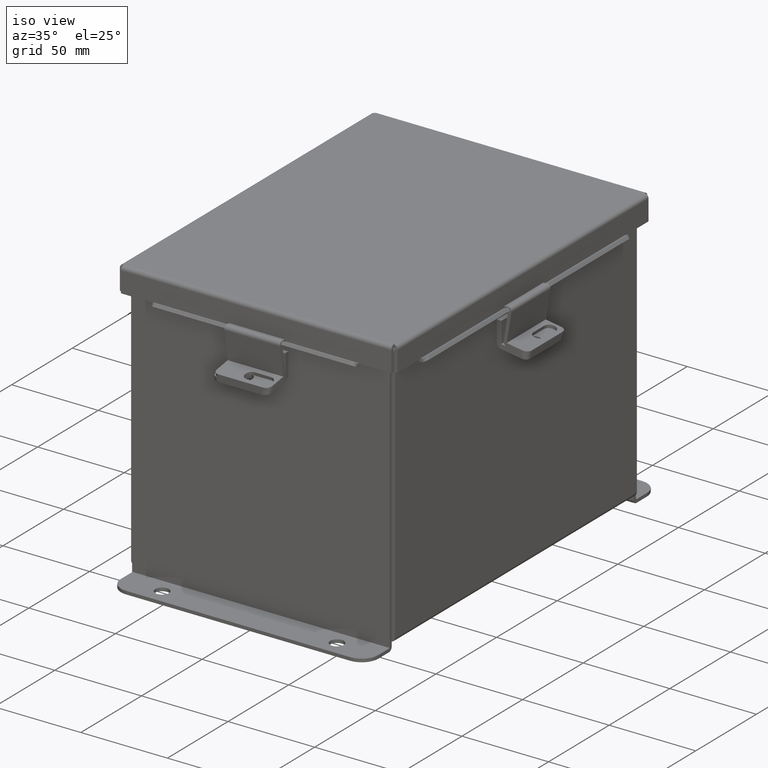
[diagram: clean part render]
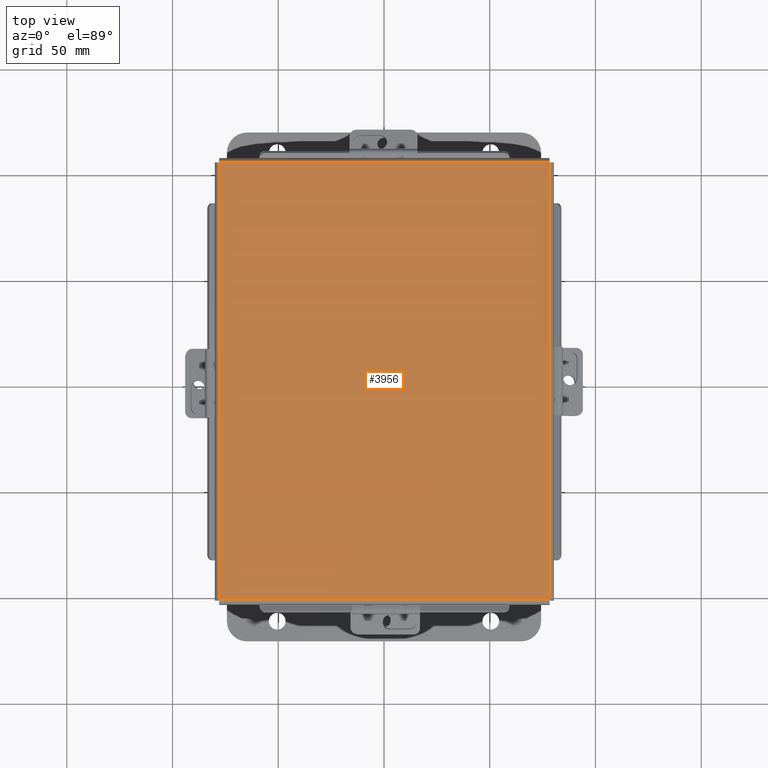
[diagram: tour spotlight — one face highlighted and labeled with its STEP entity id]
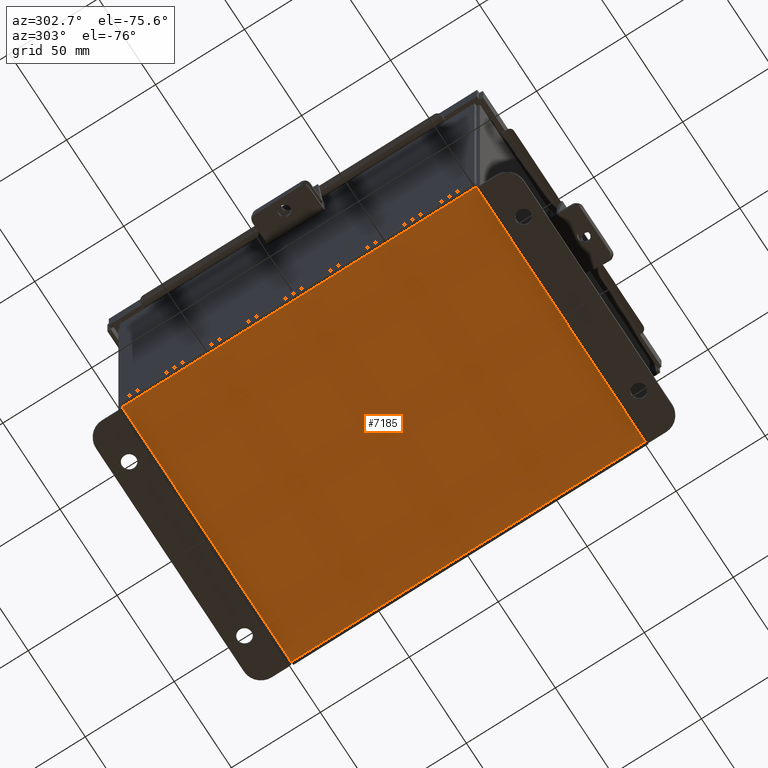
[diagram: tour spotlight — one face highlighted and labeled with its STEP entity id]
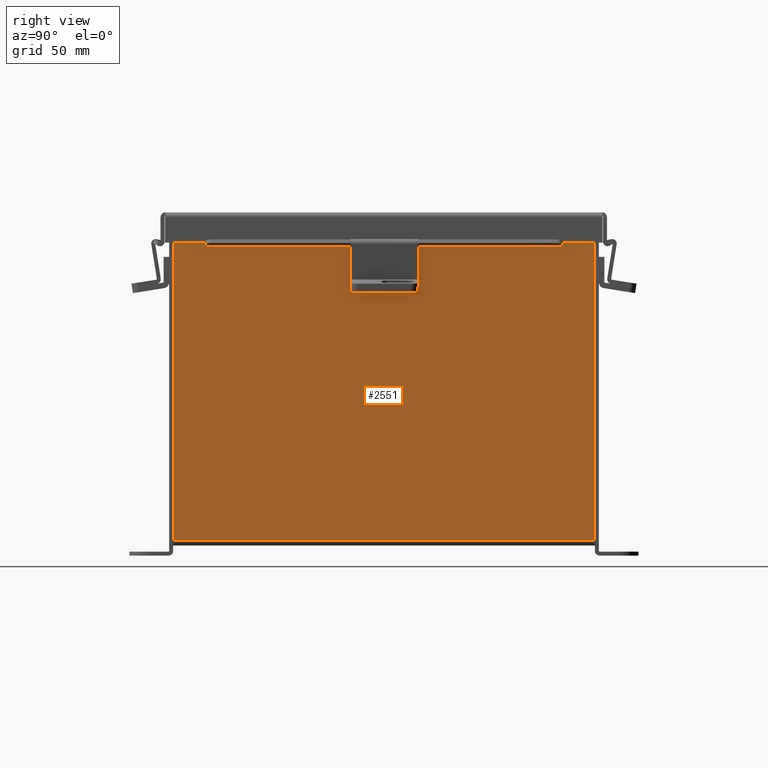
[diagram: tour spotlight — one face highlighted and labeled with its STEP entity id]
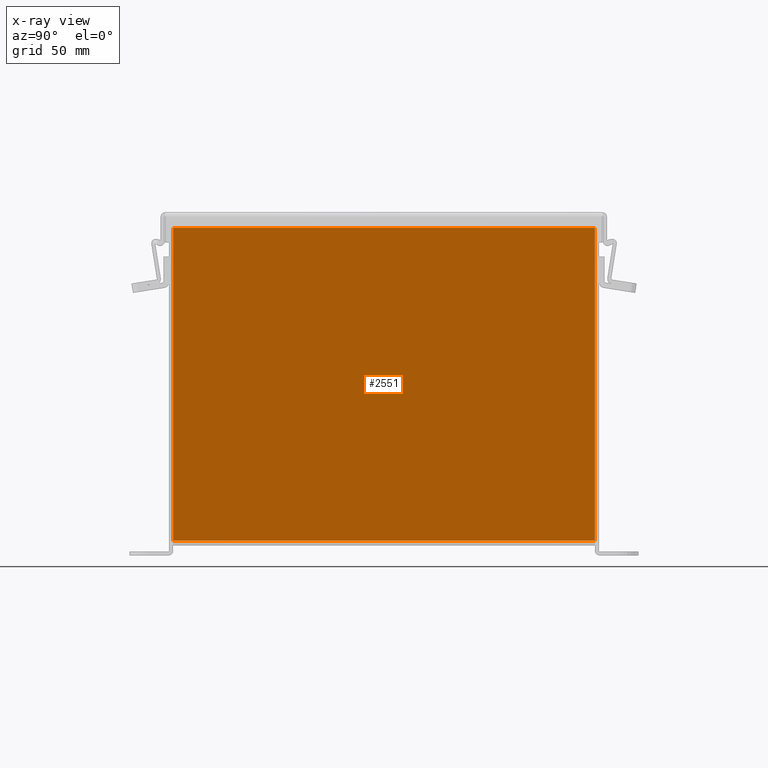
[diagram: x-ray of the same camera — body ghosted, this tour face saturated]
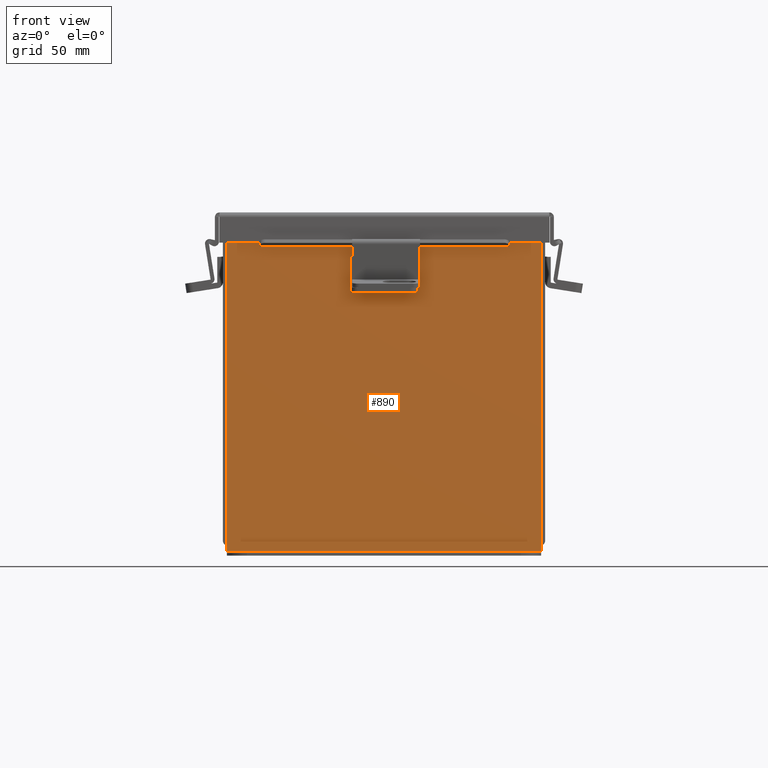
[diagram: tour spotlight — one face highlighted and labeled with its STEP entity id]
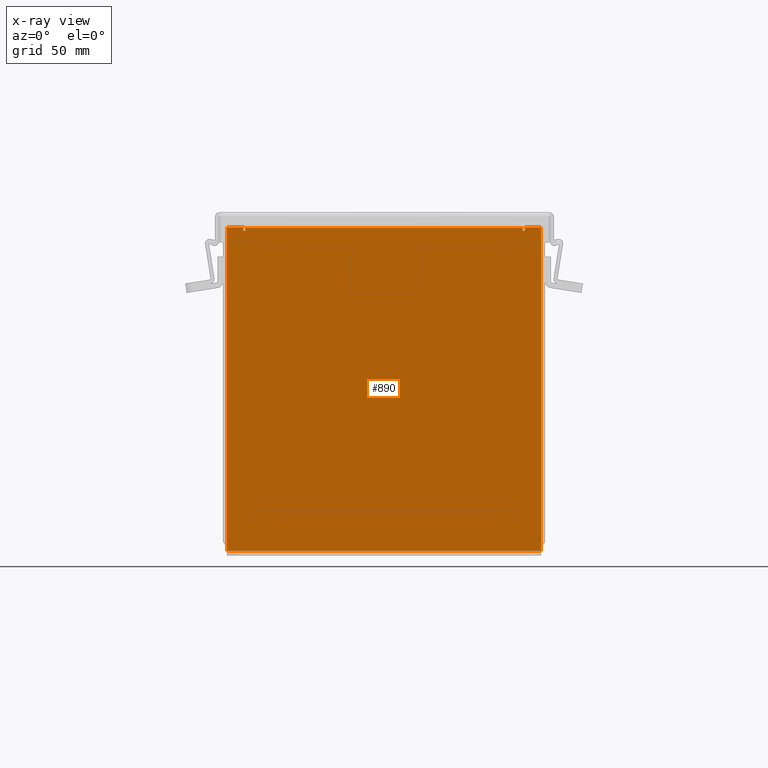
[diagram: x-ray of the same camera — body ghosted, this tour face saturated]
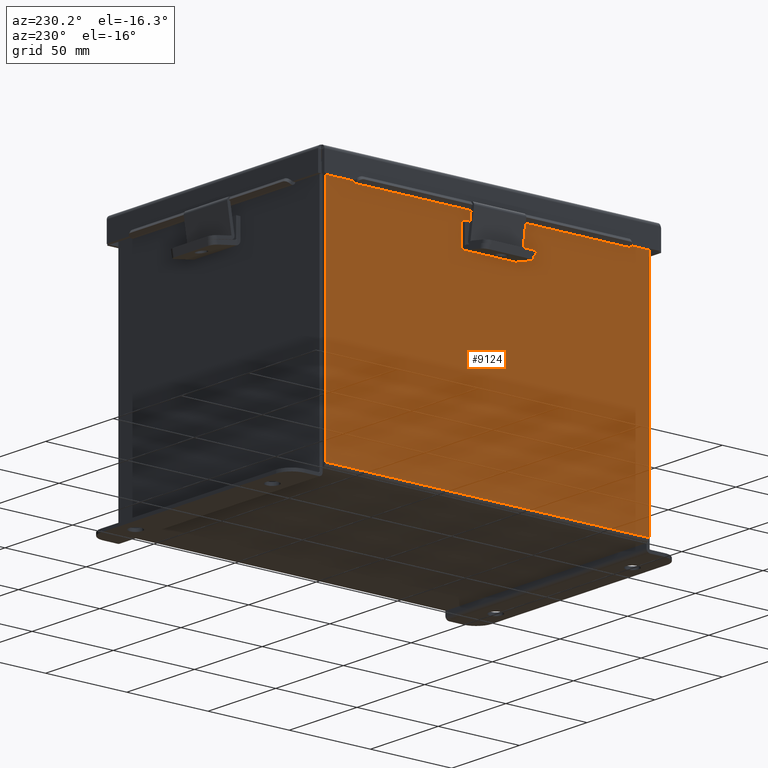
[diagram: tour spotlight — one face highlighted and labeled with its STEP entity id]
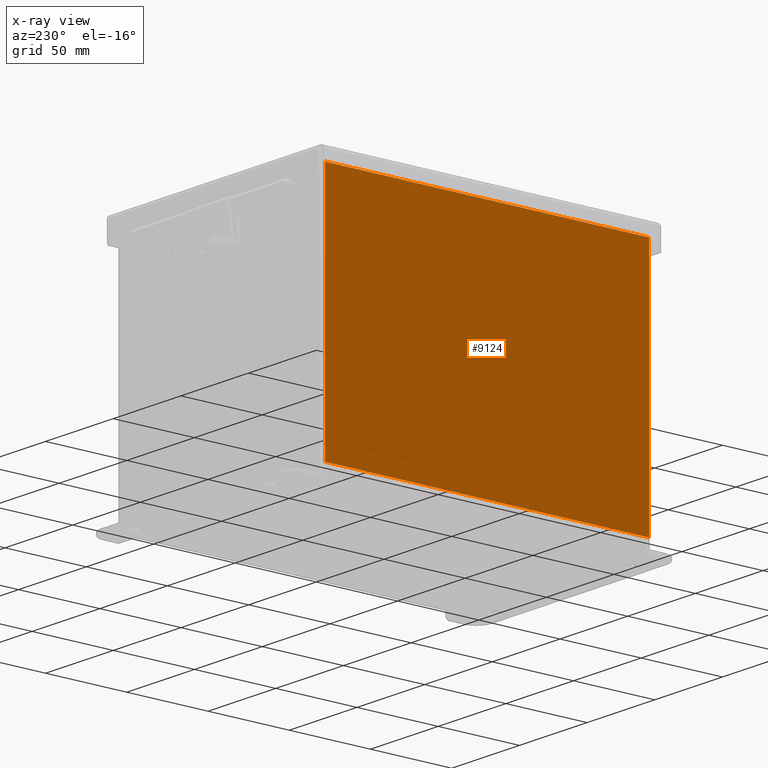
[diagram: x-ray of the same camera — body ghosted, this tour face saturated]
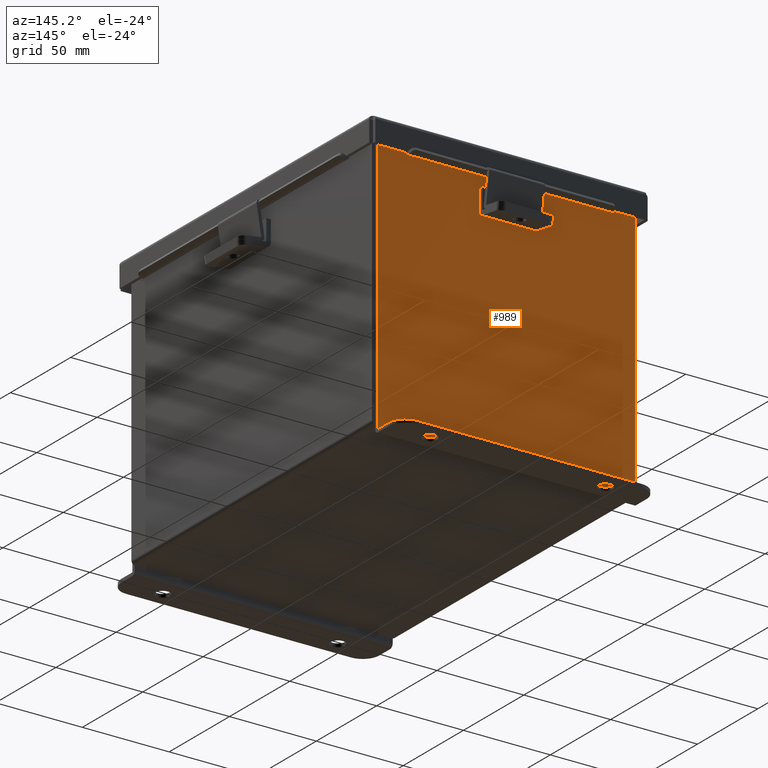
[diagram: tour spotlight — one face highlighted and labeled with its STEP entity id]
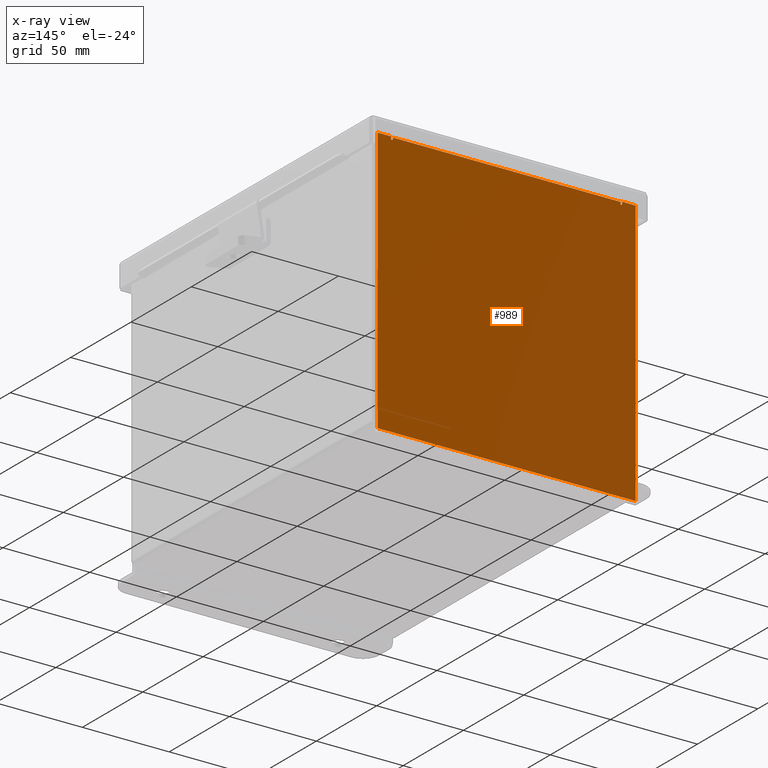
[diagram: x-ray of the same camera — body ghosted, this tour face saturated]
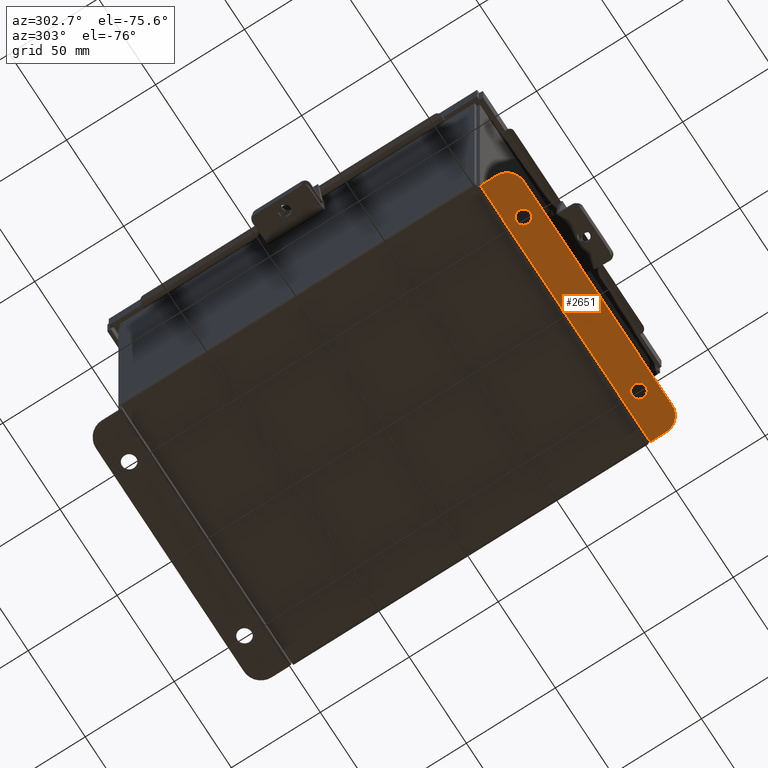
[diagram: tour spotlight — one face highlighted and labeled with its STEP entity id]
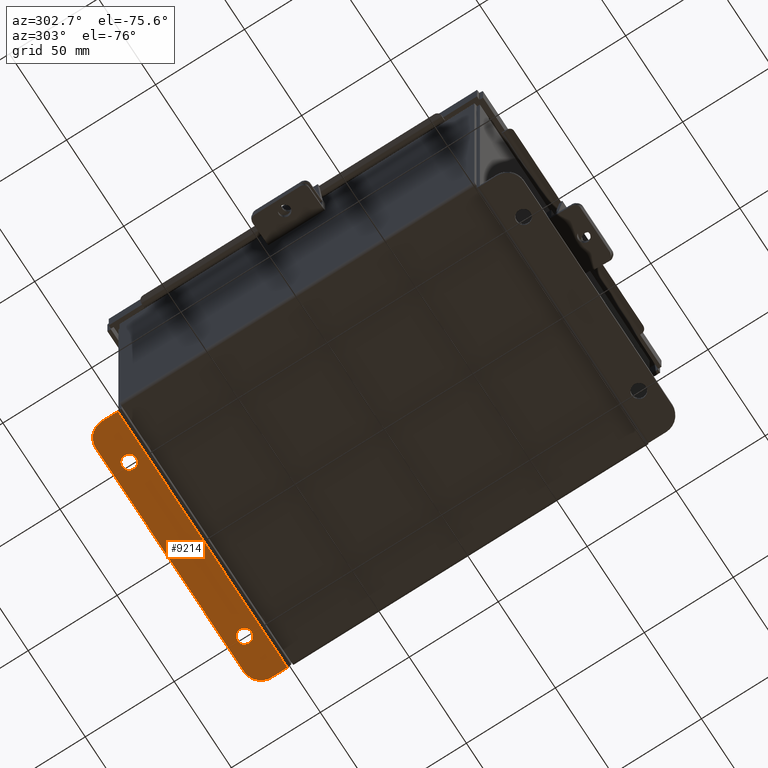
[diagram: tour spotlight — one face highlighted and labeled with its STEP entity id]
A machine part: a face-by-face anatomy tour. The part has 456 B-rep faces; the first image is the clean iso view, then the 8 largest visible faces are spotlighted one at a time (largest first), each with its STEP entity span.

Face 1 — top view, entity #3956. In plain terms, the highlighted planar face has unit normal (-0, -0, 1).
Definition (entity closure, byte-faithful):
#1202 = ORIENTED_EDGE ( 'NONE', *, *, #5972, .T. ) ;
#1941 = LINE ( 'NONE', #7887, #5937 ) ;
#2006 = VERTEX_POINT ( 'NONE', #4740 ) ;
#2049 = EDGE_CURVE ( 'NONE', #3231, #2006, #6507, .T. ) ;
#2051 = DIRECTION ( 'NONE',  ( -1.000000000000000000, 0.0000000000000000000, 0.0000000000000000000 ) ) ;
#2174 = FACE_OUTER_BOUND ( 'NONE', #7906, .T. ) ;
#2582 = LINE ( 'NONE', #7420, #8201 ) ;
#2766 = CARTESIAN_POINT ( 'NONE',  ( 0.0000000000000000000, 0.0000000000000000000, -0.07470000000000000300 ) ) ;
#3138 = VECTOR ( 'NONE', #6860, 39.37007874015748100 ) ;
#3220 = CARTESIAN_POINT ( 'NONE',  ( -3.068549999999998800, -4.068549999999999200, -0.07469999999999994700 ) ) ;
#3231 = VERTEX_POINT ( 'NONE', #5238 ) ;
#3336 = DIRECTION ( 'NONE',  ( 1.000000000000000000, 0.0000000000000000000, 0.0000000000000000000 ) ) ;
#3500 = DIRECTION ( 'NONE',  ( -1.000000000000000000, 0.0000000000000000000, -0.0000000000000000000 ) ) ;
#3956 = ADVANCED_FACE ( 'NONE', ( #2174 ), #5681, .T. ) ;
#4272 = EDGE_CURVE ( 'NONE', #5142, #5716, #1941, .T. ) ;
#4740 = CARTESIAN_POINT ( 'NONE',  ( 3.068550000000001000, 4.068550000000001900, -0.07469999999999994700 ) ) ;
#5066 = VECTOR ( 'NONE', #3336, 39.37007874015748100 ) ;
#5135 = ORIENTED_EDGE ( 'NONE', *, *, #8465, .T. ) ;
#5142 = VERTEX_POINT ( 'NONE', #7544 ) ;
#5238 = CARTESIAN_POINT ( 'NONE',  ( -3.068549999999999200, 4.068550000000001900, -0.07469999999999994700 ) ) ;
#5287 = DIRECTION ( 'NONE',  ( -0.0000000000000000000, 1.000000000000000000, -0.0000000000000000000 ) ) ;
#5325 = LINE ( 'NONE', #5414, #3138 ) ;
#5414 = CARTESIAN_POINT ( 'NONE',  ( 3.068550000000001000, 4.074478932188137400, -0.07469999999999994700 ) ) ;
#5681 = PLANE ( 'NONE',  #8582 ) ;
#5716 = VERTEX_POINT ( 'NONE', #3220 ) ;
#5937 = VECTOR ( 'NONE', #2051, 39.37007874015748100 ) ;
#5972 = EDGE_CURVE ( 'NONE', #2006, #5142, #5325, .T. ) ;
#6507 = LINE ( 'NONE', #7704, #5066 ) ;
#6860 = DIRECTION ( 'NONE',  ( -0.0000000000000000000, -1.000000000000000000, -0.0000000000000000000 ) ) ;
#7420 = CARTESIAN_POINT ( 'NONE',  ( -3.068549999999998800, -4.074478932188133800, -0.07469999999999994700 ) ) ;
#7544 = CARTESIAN_POINT ( 'NONE',  ( 3.068550000000001400, -4.068549999999998300, -0.07469999999999994700 ) ) ;
#7704 = CARTESIAN_POINT ( 'NONE',  ( -3.074478932188133800, 4.068550000000001900, -0.07469999999999994700 ) ) ;
#7878 = DIRECTION ( 'NONE',  ( 0.0000000000000000000, 0.0000000000000000000, -1.000000000000000000 ) ) ;
#7887 = CARTESIAN_POINT ( 'NONE',  ( 3.074478932188136100, -4.068549999999998300, -0.07469999999999994700 ) ) ;
#7906 = EDGE_LOOP ( 'NONE', ( #8233, #1202, #9113, #5135 ) ) ;
#8201 = VECTOR ( 'NONE', #5287, 39.37007874015748100 ) ;
#8233 = ORIENTED_EDGE ( 'NONE', *, *, #2049, .T. ) ;
#8465 = EDGE_CURVE ( 'NONE', #5716, #3231, #2582, .T. ) ;
#8582 = AXIS2_PLACEMENT_3D ( 'NONE', #2766, #7878, #3500 ) ;
#9113 = ORIENTED_EDGE ( 'NONE', *, *, #4272, .T. ) ;

Face 2 — auxiliary view, entity #7185. In plain terms, the highlighted planar face has unit normal (0, 0, -1).
Definition (entity closure, byte-faithful):
#193 = VECTOR ( 'NONE', #4798, 39.37007874015748100 ) ;
#416 = CARTESIAN_POINT ( 'NONE',  ( -2.912299999999999200, -3.925299999999999100, -0.07470000000000054400 ) ) ;
#454 = ORIENTED_EDGE ( 'NONE', *, *, #3536, .F. ) ;
#580 = EDGE_LOOP ( 'NONE', ( #454, #645, #2585, #1555 ) ) ;
#645 = ORIENTED_EDGE ( 'NONE', *, *, #1529, .T. ) ;
#1191 = LINE ( 'NONE', #2101, #8586 ) ;
#1352 = VERTEX_POINT ( 'NONE', #416 ) ;
#1529 = EDGE_CURVE ( 'NONE', #7078, #5805, #7736, .T. ) ;
#1555 = ORIENTED_EDGE ( 'NONE', *, *, #4048, .T. ) ;
#2101 = CARTESIAN_POINT ( 'NONE',  ( -2.999999999999999600, -3.925299999999999100, -0.07470000000000000300 ) ) ;
#2191 = VERTEX_POINT ( 'NONE', #4493 ) ;
#2585 = ORIENTED_EDGE ( 'NONE', *, *, #7659, .F. ) ;
#3216 = VECTOR ( 'NONE', #5884, 39.37007874015748100 ) ;
#3234 = DIRECTION ( 'NONE',  ( -1.000000000000000000, 0.0000000000000000000, -0.0000000000000000000 ) ) ;
#3288 = CARTESIAN_POINT ( 'NONE',  ( -2.999999999999999600, 3.925300000000000500, -0.07470000000000000300 ) ) ;
#3536 = EDGE_CURVE ( 'NONE', #7078, #2191, #8275, .T. ) ;
#4048 = EDGE_CURVE ( 'NONE', #1352, #2191, #9311, .T. ) ;
#4438 = CARTESIAN_POINT ( 'NONE',  ( 2.912300000000000600, 3.925300000000000500, -0.07469999999999935000 ) ) ;
#4493 = CARTESIAN_POINT ( 'NONE',  ( -2.912299999999999200, 3.925300000000000500, -0.07470000000000000300 ) ) ;
#4798 = DIRECTION ( 'NONE',  ( -1.000000000000000000, -0.0000000000000000000, -0.0000000000000000000 ) ) ;
#5805 = VERTEX_POINT ( 'NONE', #9188 ) ;
#5884 = DIRECTION ( 'NONE',  ( -0.0000000000000000000, 1.000000000000000000, 8.208677865577646300E-017 ) ) ;
#5888 = FACE_OUTER_BOUND ( 'NONE', #580, .T. ) ;
#6127 = PLANE ( 'NONE',  #6488 ) ;
#6233 = VECTOR ( 'NONE', #8836, 39.37007874015748100 ) ;
#6488 = AXIS2_PLACEMENT_3D ( 'NONE', #6855, #7609, #3234 ) ;
#6855 = CARTESIAN_POINT ( 'NONE',  ( 0.0000000000000000000, 0.0000000000000000000, -0.07470000000000000300 ) ) ;
#7078 = VERTEX_POINT ( 'NONE', #7512 ) ;
#7185 = ADVANCED_FACE ( 'NONE', ( #5888 ), #6127, .T. ) ;
#7344 = CARTESIAN_POINT ( 'NONE',  ( -2.912299999999999200, -3.925299999999999100, -0.07470000000000054400 ) ) ;
#7512 = CARTESIAN_POINT ( 'NONE',  ( 2.912300000000000600, 3.925300000000000500, -0.07469999999999935000 ) ) ;
#7609 = DIRECTION ( 'NONE',  ( 0.0000000000000000000, 0.0000000000000000000, -1.000000000000000000 ) ) ;
#7659 = EDGE_CURVE ( 'NONE', #1352, #5805, #1191, .T. ) ;
#7736 = LINE ( 'NONE', #4438, #6233 ) ;
#8275 = LINE ( 'NONE', #3288, #193 ) ;
#8586 = VECTOR ( 'NONE', #8723, 39.37007874015748100 ) ;
#8723 = DIRECTION ( 'NONE',  ( 1.000000000000000000, 0.0000000000000000000, 0.0000000000000000000 ) ) ;
#8836 = DIRECTION ( 'NONE',  ( -0.0000000000000000000, -1.000000000000000000, -8.208677865577646300E-017 ) ) ;
#9188 = CARTESIAN_POINT ( 'NONE',  ( 2.912300000000000600, -3.925299999999998700, -0.07469999999999998900 ) ) ;
#9311 = LINE ( 'NONE', #7344, #3216 ) ;

Face 3 — right view, entity #2551. An x-ray twin of the same camera follows (body ghosted, this face saturated) — the face is partly hidden behind the body. In plain terms, the highlighted planar face has unit normal (-1, 0, 0).
Definition (entity closure, byte-faithful):
#132 = VERTEX_POINT ( 'NONE', #7115 ) ;
#542 = PLANE ( 'NONE',  #2210 ) ;
#711 = EDGE_CURVE ( 'NONE', #7418, #965, #7378, .T. ) ;
#800 = DIRECTION ( 'NONE',  ( -0.0000000000000000000, -1.000000000000000000, -0.0000000000000000000 ) ) ;
#965 = VERTEX_POINT ( 'NONE', #8748 ) ;
#1138 = VERTEX_POINT ( 'NONE', #1160 ) ;
#1160 = CARTESIAN_POINT ( 'NONE',  ( 3.000000000000000900, -3.925299999999999100, 0.01299999999999980000 ) ) ;
#1296 = DIRECTION ( 'NONE',  ( -1.000000000000000000, 0.0000000000000000000, 3.455316574900958600E-015 ) ) ;
#1534 = VECTOR ( 'NONE', #5278, 39.37007874015748100 ) ;
#1551 = ORIENTED_EDGE ( 'NONE', *, *, #711, .T. ) ;
#2210 = AXIS2_PLACEMENT_3D ( 'NONE', #5739, #1296, #6428 ) ;
#2319 = CARTESIAN_POINT ( 'NONE',  ( 3.000000000000020900, 3.925299999999999100, 5.837599999999999200 ) ) ;
#2551 = ADVANCED_FACE ( 'NONE', ( #5445 ), #542, .F. ) ;
#3111 = CARTESIAN_POINT ( 'NONE',  ( 3.000000000000000900, -3.925299999999999100, -1.062676338071446000E-014 ) ) ;
#3236 = ORIENTED_EDGE ( 'NONE', *, *, #5311, .T. ) ;
#3496 = LINE ( 'NONE', #3111, #5199 ) ;
#3522 = LINE ( 'NONE', #7442, #1534 ) ;
#3818 = VECTOR ( 'NONE', #5545, 39.37007874015748100 ) ;
#5199 = VECTOR ( 'NONE', #5327, 39.37007874015748100 ) ;
#5278 = DIRECTION ( 'NONE',  ( -2.404758783435167000E-031, -1.000000000000000000, -6.959590333641414100E-017 ) ) ;
#5303 = LINE ( 'NONE', #7720, #3818 ) ;
#5311 = EDGE_CURVE ( 'NONE', #132, #7418, #5303, .T. ) ;
#5327 = DIRECTION ( 'NONE',  ( -3.455316574900958600E-015, 0.0000000000000000000, -1.000000000000000000 ) ) ;
#5445 = FACE_OUTER_BOUND ( 'NONE', #9538, .T. ) ;
#5545 = DIRECTION ( 'NONE',  ( 3.455316574900958600E-015, -1.867738689135653700E-016, 1.000000000000000000 ) ) ;
#5620 = EDGE_CURVE ( 'NONE', #965, #1138, #3496, .T. ) ;
#5739 = CARTESIAN_POINT ( 'NONE',  ( 3.000000000000000900, 0.0000000000000000000, -1.062676338071446000E-014 ) ) ;
#6275 = ORIENTED_EDGE ( 'NONE', *, *, #7875, .F. ) ;
#6339 = CARTESIAN_POINT ( 'NONE',  ( 3.000000000000020900, 3.925299999999999100, 5.837599999999999200 ) ) ;
#6428 = DIRECTION ( 'NONE',  ( 3.455316574900958600E-015, 0.0000000000000000000, 1.000000000000000000 ) ) ;
#7115 = CARTESIAN_POINT ( 'NONE',  ( 3.000000000000000900, 3.925300000000000500, 0.01300000000000039300 ) ) ;
#7169 = VECTOR ( 'NONE', #800, 39.37007874015748100 ) ;
#7229 = ORIENTED_EDGE ( 'NONE', *, *, #5620, .T. ) ;
#7378 = LINE ( 'NONE', #2319, #7169 ) ;
#7418 = VERTEX_POINT ( 'NONE', #6339 ) ;
#7442 = CARTESIAN_POINT ( 'NONE',  ( 3.000000000000000900, -3.925299999999999100, 0.01299999999999984700 ) ) ;
#7720 = CARTESIAN_POINT ( 'NONE',  ( 3.000000000000000900, 3.925300000000000500, -9.893619913068043400E-015 ) ) ;
#7875 = EDGE_CURVE ( 'NONE', #132, #1138, #3522, .T. ) ;
#8748 = CARTESIAN_POINT ( 'NONE',  ( 3.000000000000020900, -3.925299999999999100, 5.837599999999999200 ) ) ;
#9538 = EDGE_LOOP ( 'NONE', ( #1551, #7229, #6275, #3236 ) ) ;

Face 4 — front view, entity #890. An x-ray twin of the same camera follows (body ghosted, this face saturated) — the face is partly hidden behind the body. In plain terms, the highlighted planar face has unit normal (-0, 1, -0).
Definition (entity closure, byte-faithful):
#11 = ORIENTED_EDGE ( 'NONE', *, *, #1591, .T. ) ;
#78 = VECTOR ( 'NONE', #4478, 39.37007874015748100 ) ;
#266 = ORIENTED_EDGE ( 'NONE', *, *, #8059, .T. ) ;
#334 = CARTESIAN_POINT ( 'NONE',  ( -2.925299999999998200, -9.177301853715884100E-017, -3.099300000000000400 ) ) ;
#410 = CARTESIAN_POINT ( 'NONE',  ( 2.582300000000001400, 0.0000000000000000000, 0.0000000000000000000 ) ) ;
#567 = CARTESIAN_POINT ( 'NONE',  ( -2.925299999999998200, 0.0000000000000000000, 2.925299999999999600 ) ) ;
#660 = ORIENTED_EDGE ( 'NONE', *, *, #1533, .T. ) ;
#664 = DIRECTION ( 'NONE',  ( 0.0000000000000000000, 0.0000000000000000000, -1.000000000000000000 ) ) ;
#679 = CIRCLE ( 'NONE', #1717, 0.01867500000000003900 ) ;
#721 = ORIENTED_EDGE ( 'NONE', *, *, #2385, .F. ) ;
#722 = CARTESIAN_POINT ( 'NONE',  ( 0.0000000000000000000, 0.0000000000000000000, 0.0000000000000000000 ) ) ;
#890 = ADVANCED_FACE ( 'NONE', ( #4783 ), #9587, .F. ) ;
#923 = CARTESIAN_POINT ( 'NONE',  ( 2.600975000000001800, 0.0000000000000000000, 2.874949999999998800 ) ) ;
#1182 = VECTOR ( 'NONE', #7439, 39.37007874015748100 ) ;
#1289 = VERTEX_POINT ( 'NONE', #567 ) ;
#1346 = LINE ( 'NONE', #410, #2295 ) ;
#1472 = DIRECTION ( 'NONE',  ( 0.0000000000000000000, -0.0000000000000000000, -1.000000000000000000 ) ) ;
#1533 = EDGE_CURVE ( 'NONE', #4125, #6742, #2936, .T. ) ;
#1559 = CARTESIAN_POINT ( 'NONE',  ( 2.925300000000001800, 0.0000000000000000000, 2.925299999999999600 ) ) ;
#1570 = VECTOR ( 'NONE', #4822, 39.37007874015748100 ) ;
#1591 = EDGE_CURVE ( 'NONE', #6742, #4579, #5356, .T. ) ;
#1674 = DIRECTION ( 'NONE',  ( 0.0000000000000000000, 0.0000000000000000000, -1.000000000000000000 ) ) ;
#1687 = ORIENTED_EDGE ( 'NONE', *, *, #2871, .F. ) ;
#1717 = AXIS2_PLACEMENT_3D ( 'NONE', #8426, #4023, #9169 ) ;
#1790 = VERTEX_POINT ( 'NONE', #9047 ) ;
#1999 = VERTEX_POINT ( 'NONE', #6891 ) ;
#2030 = ORIENTED_EDGE ( 'NONE', *, *, #3606, .F. ) ;
#2295 = VECTOR ( 'NONE', #4860, 39.37007874015748100 ) ;
#2345 = DIRECTION ( 'NONE',  ( -1.085143195099989400E-014, 0.0000000000000000000, -1.000000000000000000 ) ) ;
#2385 = EDGE_CURVE ( 'NONE', #6716, #2724, #679, .T. ) ;
#2570 = AXIS2_PLACEMENT_3D ( 'NONE', #722, #5891, #1472 ) ;
#2724 = VERTEX_POINT ( 'NONE', #2962 ) ;
#2758 = CARTESIAN_POINT ( 'NONE',  ( 2.925300000000001800, 0.0000000000000000000, 2.925299999999999600 ) ) ;
#2828 = DIRECTION ( 'NONE',  ( 0.0000000000000000000, 0.0000000000000000000, 1.000000000000000000 ) ) ;
#2855 = CARTESIAN_POINT ( 'NONE',  ( -2.619649999999998300, 0.0000000000000000000, 2.925299999999999600 ) ) ;
#2871 = EDGE_CURVE ( 'NONE', #4125, #8734, #8730, .T. ) ;
#2877 = ORIENTED_EDGE ( 'NONE', *, *, #4764, .T. ) ;
#2936 = LINE ( 'NONE', #9600, #7050 ) ;
#2962 = CARTESIAN_POINT ( 'NONE',  ( -2.619649999999998300, 0.0000000000000000000, 2.874949999999998800 ) ) ;
#3092 = CARTESIAN_POINT ( 'NONE',  ( 2.619649999999970700, -0.0000000000000000000, -2.842695371043654900E-014 ) ) ;
#3494 = CARTESIAN_POINT ( 'NONE',  ( -2.582299999999998300, -0.0000000000000000000, 2.874949999999998800 ) ) ;
#3606 = EDGE_CURVE ( 'NONE', #6393, #1999, #1346, .T. ) ;
#3631 = CARTESIAN_POINT ( 'NONE',  ( 2.925300000000001800, -9.177301853715884100E-017, -3.099300000000000400 ) ) ;
#3787 = EDGE_CURVE ( 'NONE', #1790, #4579, #8976, .T. ) ;
#4023 = DIRECTION ( 'NONE',  ( -0.0000000000000000000, 1.000000000000000000, -0.0000000000000000000 ) ) ;
#4125 = VERTEX_POINT ( 'NONE', #4797 ) ;
#4293 = EDGE_CURVE ( 'NONE', #2724, #8340, #8525, .T. ) ;
#4331 = ORIENTED_EDGE ( 'NONE', *, *, #5869, .F. ) ;
#4478 = DIRECTION ( 'NONE',  ( 1.000000000000000000, 0.0000000000000000000, 0.0000000000000000000 ) ) ;
#4530 = ORIENTED_EDGE ( 'NONE', *, *, #3787, .F. ) ;
#4579 = VERTEX_POINT ( 'NONE', #3631 ) ;
#4733 = DIRECTION ( 'NONE',  ( 1.000000000000000000, 0.0000000000000000000, 0.0000000000000000000 ) ) ;
#4764 = EDGE_CURVE ( 'NONE', #1289, #8340, #4826, .T. ) ;
#4783 = FACE_OUTER_BOUND ( 'NONE', #6937, .T. ) ;
#4797 = CARTESIAN_POINT ( 'NONE',  ( 2.619650000000001800, 0.0000000000000000000, 2.925299999999999600 ) ) ;
#4822 = DIRECTION ( 'NONE',  ( 1.000000000000000000, -0.0000000000000000000, -0.0000000000000000000 ) ) ;
#4826 = LINE ( 'NONE', #7416, #78 ) ;
#4860 = DIRECTION ( 'NONE',  ( 0.0000000000000000000, 0.0000000000000000000, 1.000000000000000000 ) ) ;
#4999 = DIRECTION ( 'NONE',  ( -0.0000000000000000000, -0.0000000000000000000, 1.000000000000000000 ) ) ;
#5049 = VECTOR ( 'NONE', #2345, 39.37007874015748100 ) ;
#5110 = CARTESIAN_POINT ( 'NONE',  ( -2.582299999999998300, -0.0000000000000000000, 0.0000000000000000000 ) ) ;
#5356 = LINE ( 'NONE', #1559, #1182 ) ;
#5568 = AXIS2_PLACEMENT_3D ( 'NONE', #923, #6077, #1674 ) ;
#5579 = VECTOR ( 'NONE', #4733, 39.37007874015748100 ) ;
#5649 = VERTEX_POINT ( 'NONE', #9037 ) ;
#5869 = EDGE_CURVE ( 'NONE', #8734, #6393, #7247, .T. ) ;
#5891 = DIRECTION ( 'NONE',  ( 0.0000000000000000000, -1.000000000000000000, 0.0000000000000000000 ) ) ;
#6077 = DIRECTION ( 'NONE',  ( -0.0000000000000000000, 1.000000000000000000, -0.0000000000000000000 ) ) ;
#6343 = EDGE_CURVE ( 'NONE', #5649, #6716, #8746, .T. ) ;
#6393 = VERTEX_POINT ( 'NONE', #8040 ) ;
#6599 = DIRECTION ( 'NONE',  ( 1.000000000000000000, 0.0000000000000000000, 0.0000000000000000000 ) ) ;
#6716 = VERTEX_POINT ( 'NONE', #3494 ) ;
#6742 = VERTEX_POINT ( 'NONE', #2758 ) ;
#6891 = CARTESIAN_POINT ( 'NONE',  ( 2.582300000000001400, 0.0000000000000000000, 2.912299999999998800 ) ) ;
#6937 = EDGE_LOOP ( 'NONE', ( #8680, #721, #7122, #266, #2030, #4331, #1687, #660, #11, #4530, #7979, #2877 ) ) ;
#7050 = VECTOR ( 'NONE', #6599, 39.37007874015748100 ) ;
#7061 = LINE ( 'NONE', #8629, #8803 ) ;
#7122 = ORIENTED_EDGE ( 'NONE', *, *, #6343, .F. ) ;
#7247 = CIRCLE ( 'NONE', #5568, 0.01867500000000003900 ) ;
#7416 = CARTESIAN_POINT ( 'NONE',  ( -2.925299999999998200, 0.0000000000000000000, 2.925299999999999600 ) ) ;
#7439 = DIRECTION ( 'NONE',  ( 0.0000000000000000000, 0.0000000000000000000, -1.000000000000000000 ) ) ;
#7636 = EDGE_CURVE ( 'NONE', #1790, #1289, #7061, .T. ) ;
#7915 = CARTESIAN_POINT ( 'NONE',  ( -2.619649999999998300, -0.0000000000000000000, 0.0000000000000000000 ) ) ;
#7979 = ORIENTED_EDGE ( 'NONE', *, *, #7636, .T. ) ;
#8040 = CARTESIAN_POINT ( 'NONE',  ( 2.582300000000001400, 0.0000000000000000000, 2.874949999999998800 ) ) ;
#8059 = EDGE_CURVE ( 'NONE', #5649, #1999, #9511, .T. ) ;
#8340 = VERTEX_POINT ( 'NONE', #2855 ) ;
#8404 = VECTOR ( 'NONE', #2828, 39.37007874015748100 ) ;
#8426 = CARTESIAN_POINT ( 'NONE',  ( -2.600974999999998300, 0.0000000000000000000, 2.874949999999998800 ) ) ;
#8525 = LINE ( 'NONE', #7915, #8404 ) ;
#8629 = CARTESIAN_POINT ( 'NONE',  ( -2.925299999999998200, 0.0000000000000000000, 2.925299999999999600 ) ) ;
#8680 = ORIENTED_EDGE ( 'NONE', *, *, #4293, .F. ) ;
#8730 = LINE ( 'NONE', #3092, #5049 ) ;
#8734 = VERTEX_POINT ( 'NONE', #9209 ) ;
#8746 = LINE ( 'NONE', #5110, #9219 ) ;
#8803 = VECTOR ( 'NONE', #4999, 39.37007874015748100 ) ;
#8976 = LINE ( 'NONE', #334, #1570 ) ;
#9037 = CARTESIAN_POINT ( 'NONE',  ( -2.582299999999998300, 1.195183497228115100E-015, 2.912299999999998800 ) ) ;
#9047 = CARTESIAN_POINT ( 'NONE',  ( -2.925299999999997800, -9.177301853715884100E-017, -3.099300000000000400 ) ) ;
#9142 = CARTESIAN_POINT ( 'NONE',  ( -2.582299999999998300, 1.195183497228115100E-015, 2.912299999999998800 ) ) ;
#9169 = DIRECTION ( 'NONE',  ( 0.0000000000000000000, 0.0000000000000000000, -1.000000000000000000 ) ) ;
#9209 = CARTESIAN_POINT ( 'NONE',  ( 2.619650000000001800, 0.0000000000000000000, 2.874949999999998800 ) ) ;
#9219 = VECTOR ( 'NONE', #664, 39.37007874015748100 ) ;
#9511 = LINE ( 'NONE', #9142, #5579 ) ;
#9587 = PLANE ( 'NONE',  #2570 ) ;
#9600 = CARTESIAN_POINT ( 'NONE',  ( -2.925299999999998200, 0.0000000000000000000, 2.925299999999999600 ) ) ;

Face 5 — auxiliary view, entity #9124. An x-ray twin of the same camera follows (body ghosted, this face saturated) — the face is partly hidden behind the body. In plain terms, the highlighted planar face has unit normal (1, 0, 0).
Definition (entity closure, byte-faithful):
#2 = ORIENTED_EDGE ( 'NONE', *, *, #8701, .T. ) ;
#301 = CARTESIAN_POINT ( 'NONE',  ( -2.999999999999999600, -3.925299999999999100, 0.01299999999999930000 ) ) ;
#325 = DIRECTION ( 'NONE',  ( 0.0000000000000000000, 1.000000000000000000, 0.0000000000000000000 ) ) ;
#797 = LINE ( 'NONE', #4475, #6327 ) ;
#879 = LINE ( 'NONE', #9012, #8499 ) ;
#1377 = LINE ( 'NONE', #7904, #1380 ) ;
#1380 = VECTOR ( 'NONE', #4243, 39.37007874015748100 ) ;
#2259 = VERTEX_POINT ( 'NONE', #3796 ) ;
#3354 = EDGE_CURVE ( 'NONE', #2259, #5809, #879, .T. ) ;
#3545 = ORIENTED_EDGE ( 'NONE', *, *, #6760, .T. ) ;
#3796 = CARTESIAN_POINT ( 'NONE',  ( -3.000000000000020000, 3.925300000000000500, 5.837600000000000100 ) ) ;
#3933 = DIRECTION ( 'NONE',  ( 1.000000000000000000, 0.0000000000000000000, 3.455316574900958600E-015 ) ) ;
#4243 = DIRECTION ( 'NONE',  ( -3.455316574900958600E-015, 1.867738689135653700E-016, 1.000000000000000000 ) ) ;
#4475 = CARTESIAN_POINT ( 'NONE',  ( -2.999999999999999600, 3.925300000000000500, 0.01299999999999984700 ) ) ;
#4479 = ORIENTED_EDGE ( 'NONE', *, *, #3354, .T. ) ;
#4772 = CARTESIAN_POINT ( 'NONE',  ( -3.000000000000018700, -3.925299999999998200, 5.837600000000000100 ) ) ;
#4781 = CARTESIAN_POINT ( 'NONE',  ( -2.999999999999999600, 3.925300000000000500, 0.01299999999999990100 ) ) ;
#5231 = LINE ( 'NONE', #4772, #5474 ) ;
#5474 = VECTOR ( 'NONE', #325, 39.37007874015748100 ) ;
#5597 = CARTESIAN_POINT ( 'NONE',  ( -3.000000000000018700, -3.925299999999998200, 5.837600000000000100 ) ) ;
#5803 = EDGE_LOOP ( 'NONE', ( #2, #4479, #7295, #3545 ) ) ;
#5809 = VERTEX_POINT ( 'NONE', #4781 ) ;
#6137 = FACE_OUTER_BOUND ( 'NONE', #5803, .T. ) ;
#6327 = VECTOR ( 'NONE', #8870, 39.37007874015748100 ) ;
#6760 = EDGE_CURVE ( 'NONE', #9218, #8219, #1377, .T. ) ;
#6969 = EDGE_CURVE ( 'NONE', #9218, #5809, #797, .T. ) ;
#7214 = AXIS2_PLACEMENT_3D ( 'NONE', #8310, #3933, #9077 ) ;
#7295 = ORIENTED_EDGE ( 'NONE', *, *, #6969, .F. ) ;
#7571 = PLANE ( 'NONE',  #7214 ) ;
#7904 = CARTESIAN_POINT ( 'NONE',  ( -2.999999999999999600, -3.925299999999999100, -9.893619913068038700E-015 ) ) ;
#8219 = VERTEX_POINT ( 'NONE', #5597 ) ;
#8310 = CARTESIAN_POINT ( 'NONE',  ( -2.999999999999999600, 0.0000000000000000000, -1.062676338071445600E-014 ) ) ;
#8319 = DIRECTION ( 'NONE',  ( 3.455316574900958600E-015, 0.0000000000000000000, -1.000000000000000000 ) ) ;
#8499 = VECTOR ( 'NONE', #8319, 39.37007874015748100 ) ;
#8701 = EDGE_CURVE ( 'NONE', #8219, #2259, #5231, .T. ) ;
#8870 = DIRECTION ( 'NONE',  ( -2.404758783435166500E-031, 1.000000000000000000, 6.959590333641412800E-017 ) ) ;
#9012 = CARTESIAN_POINT ( 'NONE',  ( -2.999999999999999600, 3.925300000000000500, -1.062676338071445600E-014 ) ) ;
#9077 = DIRECTION ( 'NONE',  ( 3.455316574900958600E-015, 0.0000000000000000000, -1.000000000000000000 ) ) ;
#9124 = ADVANCED_FACE ( 'NONE', ( #6137 ), #7571, .F. ) ;
#9218 = VERTEX_POINT ( 'NONE', #301 ) ;

Face 6 — auxiliary view, entity #989. An x-ray twin of the same camera follows (body ghosted, this face saturated) — the face is partly hidden behind the body. In plain terms, the highlighted planar face has unit normal (0, -1, 0).
Definition (entity closure, byte-faithful):
#161 = CARTESIAN_POINT ( 'NONE',  ( 2.582300000000000500, 0.0000000000000000000, 0.0000000000000000000 ) ) ;
#233 = AXIS2_PLACEMENT_3D ( 'NONE', #532, #5731, #1278 ) ;
#343 = CARTESIAN_POINT ( 'NONE',  ( -2.600974999999999600, 0.0000000000000000000, 2.874949999999999200 ) ) ;
#412 = EDGE_CURVE ( 'NONE', #8690, #1751, #3626, .T. ) ;
#434 = CARTESIAN_POINT ( 'NONE',  ( -2.925299999999999600, 0.0000000000000000000, 2.925300000000000000 ) ) ;
#439 = DIRECTION ( 'NONE',  ( 1.000000000000000000, -0.0000000000000000000, -0.0000000000000000000 ) ) ;
#532 = CARTESIAN_POINT ( 'NONE',  ( 2.600975000000000500, 0.0000000000000000000, 2.874949999999999200 ) ) ;
#726 = CARTESIAN_POINT ( 'NONE',  ( -2.582299999999999600, -0.0000000000000000000, 2.874949999999999200 ) ) ;
#916 = CARTESIAN_POINT ( 'NONE',  ( 2.619649999999969400, -0.0000000000000000000, -2.842695371043653600E-014 ) ) ;
#989 = ADVANCED_FACE ( 'NONE', ( #8070 ), #8017, .F. ) ;
#1004 = VECTOR ( 'NONE', #3369, 39.37007874015748100 ) ;
#1050 = AXIS2_PLACEMENT_3D ( 'NONE', #5826, #8775, #4370 ) ;
#1096 = DIRECTION ( 'NONE',  ( 0.0000000000000000000, 0.0000000000000000000, -1.000000000000000000 ) ) ;
#1230 = EDGE_CURVE ( 'NONE', #4975, #2134, #6396, .T. ) ;
#1278 = DIRECTION ( 'NONE',  ( 0.0000000000000000000, 0.0000000000000000000, -1.000000000000000000 ) ) ;
#1302 = EDGE_CURVE ( 'NONE', #1751, #7258, #3228, .T. ) ;
#1554 = VERTEX_POINT ( 'NONE', #2278 ) ;
#1751 = VERTEX_POINT ( 'NONE', #3832 ) ;
#1753 = CARTESIAN_POINT ( 'NONE',  ( -2.925299999999999600, 0.0000000000000000000, 2.925300000000000000 ) ) ;
#1794 = CARTESIAN_POINT ( 'NONE',  ( -2.582299999999999600, 1.195183497228115100E-015, 2.912299999999999200 ) ) ;
#1873 = EDGE_CURVE ( 'NONE', #4960, #1554, #2952, .T. ) ;
#1896 = DIRECTION ( 'NONE',  ( 1.000000000000000000, 0.0000000000000000000, 0.0000000000000000000 ) ) ;
#2106 = LINE ( 'NONE', #2739, #6337 ) ;
#2134 = VERTEX_POINT ( 'NONE', #726 ) ;
#2278 = CARTESIAN_POINT ( 'NONE',  ( -2.925299999999999600, 0.0000000000000000000, 2.925300000000000000 ) ) ;
#2332 = VECTOR ( 'NONE', #439, 39.37007874015748100 ) ;
#2333 = LINE ( 'NONE', #916, #2912 ) ;
#2496 = EDGE_CURVE ( 'NONE', #4960, #7258, #6539, .T. ) ;
#2530 = CIRCLE ( 'NONE', #9029, 0.01867500000000003900 ) ;
#2540 = EDGE_CURVE ( 'NONE', #8977, #2710, #2106, .T. ) ;
#2710 = VERTEX_POINT ( 'NONE', #3698 ) ;
#2739 = CARTESIAN_POINT ( 'NONE',  ( -2.619649999999999600, -0.0000000000000000000, 0.0000000000000000000 ) ) ;
#2767 = CARTESIAN_POINT ( 'NONE',  ( 2.582300000000000500, 0.0000000000000000000, 2.874949999999999200 ) ) ;
#2777 = DIRECTION ( 'NONE',  ( 0.0000000000000000000, 0.0000000000000000000, -1.000000000000000000 ) ) ;
#2799 = LINE ( 'NONE', #161, #6776 ) ;
#2841 = LINE ( 'NONE', #8502, #3533 ) ;
#2854 = ORIENTED_EDGE ( 'NONE', *, *, #5064, .T. ) ;
#2863 = ORIENTED_EDGE ( 'NONE', *, *, #4114, .F. ) ;
#2912 = VECTOR ( 'NONE', #9021, 39.37007874015748100 ) ;
#2952 = LINE ( 'NONE', #1753, #8598 ) ;
#3199 = ORIENTED_EDGE ( 'NONE', *, *, #7112, .F. ) ;
#3228 = LINE ( 'NONE', #5024, #1004 ) ;
#3369 = DIRECTION ( 'NONE',  ( 0.0000000000000000000, 0.0000000000000000000, -1.000000000000000000 ) ) ;
#3442 = CIRCLE ( 'NONE', #233, 0.01867500000000003900 ) ;
#3533 = VECTOR ( 'NONE', #1896, 39.37007874015748100 ) ;
#3626 = LINE ( 'NONE', #4643, #3730 ) ;
#3674 = VECTOR ( 'NONE', #2777, 39.37007874015748100 ) ;
#3698 = CARTESIAN_POINT ( 'NONE',  ( -2.619649999999999600, 0.0000000000000000000, 2.925300000000000000 ) ) ;
#3730 = VECTOR ( 'NONE', #4763, 39.37007874015748100 ) ;
#3832 = CARTESIAN_POINT ( 'NONE',  ( 2.925300000000000500, 0.0000000000000000000, 2.925300000000000000 ) ) ;
#4114 = EDGE_CURVE ( 'NONE', #2134, #8977, #2530, .T. ) ;
#4370 = DIRECTION ( 'NONE',  ( 0.0000000000000000000, -0.0000000000000000000, -1.000000000000000000 ) ) ;
#4446 = EDGE_CURVE ( 'NONE', #6954, #9437, #3442, .T. ) ;
#4534 = CARTESIAN_POINT ( 'NONE',  ( 2.582300000000000500, 0.0000000000000000000, 2.912299999999999200 ) ) ;
#4643 = CARTESIAN_POINT ( 'NONE',  ( -2.925299999999999600, 0.0000000000000000000, 2.925300000000000000 ) ) ;
#4763 = DIRECTION ( 'NONE',  ( 1.000000000000000000, 0.0000000000000000000, 0.0000000000000000000 ) ) ;
#4780 = VECTOR ( 'NONE', #4881, 39.37007874015748100 ) ;
#4851 = EDGE_CURVE ( 'NONE', #9437, #7874, #2799, .T. ) ;
#4881 = DIRECTION ( 'NONE',  ( 1.000000000000000000, 0.0000000000000000000, 0.0000000000000000000 ) ) ;
#4960 = VERTEX_POINT ( 'NONE', #9143 ) ;
#4975 = VERTEX_POINT ( 'NONE', #1794 ) ;
#5024 = CARTESIAN_POINT ( 'NONE',  ( 2.925300000000000500, 0.0000000000000000000, 2.925300000000000000 ) ) ;
#5064 = EDGE_CURVE ( 'NONE', #4975, #7874, #2841, .T. ) ;
#5379 = ORIENTED_EDGE ( 'NONE', *, *, #4851, .F. ) ;
#5490 = ORIENTED_EDGE ( 'NONE', *, *, #9333, .T. ) ;
#5522 = DIRECTION ( 'NONE',  ( -0.0000000000000000000, 1.000000000000000000, -0.0000000000000000000 ) ) ;
#5731 = DIRECTION ( 'NONE',  ( -0.0000000000000000000, 1.000000000000000000, -0.0000000000000000000 ) ) ;
#5796 = ORIENTED_EDGE ( 'NONE', *, *, #412, .T. ) ;
#5826 = CARTESIAN_POINT ( 'NONE',  ( 0.0000000000000000000, 0.0000000000000000000, 0.0000000000000000000 ) ) ;
#6337 = VECTOR ( 'NONE', #7109, 39.37007874015748100 ) ;
#6396 = LINE ( 'NONE', #8621, #3674 ) ;
#6539 = LINE ( 'NONE', #7789, #2332 ) ;
#6776 = VECTOR ( 'NONE', #9061, 39.37007874015748100 ) ;
#6880 = DIRECTION ( 'NONE',  ( -0.0000000000000000000, -0.0000000000000000000, 1.000000000000000000 ) ) ;
#6892 = ORIENTED_EDGE ( 'NONE', *, *, #2496, .F. ) ;
#6954 = VERTEX_POINT ( 'NONE', #9605 ) ;
#7109 = DIRECTION ( 'NONE',  ( 0.0000000000000000000, 0.0000000000000000000, 1.000000000000000000 ) ) ;
#7112 = EDGE_CURVE ( 'NONE', #8690, #6954, #2333, .T. ) ;
#7168 = ORIENTED_EDGE ( 'NONE', *, *, #1873, .T. ) ;
#7258 = VERTEX_POINT ( 'NONE', #8432 ) ;
#7286 = EDGE_LOOP ( 'NONE', ( #7604, #2863, #8101, #2854, #5379, #8626, #3199, #5796, #8054, #6892, #7168, #5490 ) ) ;
#7604 = ORIENTED_EDGE ( 'NONE', *, *, #2540, .F. ) ;
#7650 = CARTESIAN_POINT ( 'NONE',  ( 2.619650000000000500, 0.0000000000000000000, 2.925300000000000000 ) ) ;
#7789 = CARTESIAN_POINT ( 'NONE',  ( -2.925299999999999600, -9.177301853715884100E-017, -3.099299999999999900 ) ) ;
#7874 = VERTEX_POINT ( 'NONE', #4534 ) ;
#8017 = PLANE ( 'NONE',  #1050 ) ;
#8054 = ORIENTED_EDGE ( 'NONE', *, *, #1302, .T. ) ;
#8070 = FACE_OUTER_BOUND ( 'NONE', #7286, .T. ) ;
#8101 = ORIENTED_EDGE ( 'NONE', *, *, #1230, .F. ) ;
#8432 = CARTESIAN_POINT ( 'NONE',  ( 2.925300000000000500, -9.177301853715884100E-017, -3.099299999999999900 ) ) ;
#8502 = CARTESIAN_POINT ( 'NONE',  ( -2.582299999999999600, 1.195183497228115100E-015, 2.912299999999999200 ) ) ;
#8598 = VECTOR ( 'NONE', #6880, 39.37007874015748100 ) ;
#8621 = CARTESIAN_POINT ( 'NONE',  ( -2.582299999999999600, -0.0000000000000000000, 0.0000000000000000000 ) ) ;
#8626 = ORIENTED_EDGE ( 'NONE', *, *, #4446, .F. ) ;
#8679 = LINE ( 'NONE', #434, #4780 ) ;
#8690 = VERTEX_POINT ( 'NONE', #7650 ) ;
#8718 = CARTESIAN_POINT ( 'NONE',  ( -2.619649999999999600, 0.0000000000000000000, 2.874949999999999200 ) ) ;
#8775 = DIRECTION ( 'NONE',  ( 0.0000000000000000000, -1.000000000000000000, 0.0000000000000000000 ) ) ;
#8977 = VERTEX_POINT ( 'NONE', #8718 ) ;
#9021 = DIRECTION ( 'NONE',  ( -1.085143195099989400E-014, 0.0000000000000000000, -1.000000000000000000 ) ) ;
#9029 = AXIS2_PLACEMENT_3D ( 'NONE', #343, #5522, #1096 ) ;
#9061 = DIRECTION ( 'NONE',  ( 0.0000000000000000000, 0.0000000000000000000, 1.000000000000000000 ) ) ;
#9143 = CARTESIAN_POINT ( 'NONE',  ( -2.925299999999999100, -9.177301853715884100E-017, -3.099299999999999900 ) ) ;
#9333 = EDGE_CURVE ( 'NONE', #1554, #2710, #8679, .T. ) ;
#9437 = VERTEX_POINT ( 'NONE', #2767 ) ;
#9605 = CARTESIAN_POINT ( 'NONE',  ( 2.619650000000000500, 0.0000000000000000000, 2.874949999999999200 ) ) ;

Face 7 — auxiliary view, entity #2651. In plain terms, the highlighted planar face has unit normal (0, -0, 1).
Definition (entity closure, byte-faithful):
#110 = CARTESIAN_POINT ( 'NONE',  ( 2.550300000000001300, 0.7378000000000000100, -3.187000000000003400 ) ) ;
#235 = VERTEX_POINT ( 'NONE', #3102 ) ;
#572 = DIRECTION ( 'NONE',  ( -0.0000000000000000000, -3.702694488566362300E-015, -1.000000000000000000 ) ) ;
#616 = VERTEX_POINT ( 'NONE', #8989 ) ;
#632 = DIRECTION ( 'NONE',  ( 0.0000000000000000000, -1.000000000000000000, 4.370956789862820400E-015 ) ) ;
#725 = ORIENTED_EDGE ( 'NONE', *, *, #1152, .T. ) ;
#831 = VERTEX_POINT ( 'NONE', #5106 ) ;
#850 = ORIENTED_EDGE ( 'NONE', *, *, #7003, .F. ) ;
#1000 = AXIS2_PLACEMENT_3D ( 'NONE', #5033, #572, #5775 ) ;
#1060 = DIRECTION ( 'NONE',  ( 0.0000000000000000000, -3.362274453740631800E-015, -1.000000000000000000 ) ) ;
#1152 = EDGE_CURVE ( 'NONE', #9558, #831, #2083, .T. ) ;
#1159 = LINE ( 'NONE', #3057, #3842 ) ;
#1480 = AXIS2_PLACEMENT_3D ( 'NONE', #9500, #5084, #632 ) ;
#1561 = DIRECTION ( 'NONE',  ( 0.0000000000000000000, -3.362274453740631800E-015, -1.000000000000000000 ) ) ;
#1692 = ORIENTED_EDGE ( 'NONE', *, *, #7825, .F. ) ;
#1869 = VECTOR ( 'NONE', #5240, 39.37007874015748100 ) ;
#1920 = VERTEX_POINT ( 'NONE', #5346 ) ;
#1984 = CARTESIAN_POINT ( 'NONE',  ( -2.925299999999998200, 0.3628000000000000100, -3.187000000000001600 ) ) ;
#2083 = LINE ( 'NONE', #9313, #7933 ) ;
#2116 = LINE ( 'NONE', #6187, #3963 ) ;
#2144 = CARTESIAN_POINT ( 'NONE',  ( 2.925300000000001800, 0.3627999999999999600, -3.187000000000001600 ) ) ;
#2160 = CARTESIAN_POINT ( 'NONE',  ( -1.987799999999997800, 0.3627999999999999000, -3.187000000000001600 ) ) ;
#2282 = CARTESIAN_POINT ( 'NONE',  ( 2.925300000000001800, 0.01300000000000062700, -3.187000000000000700 ) ) ;
#2287 = EDGE_CURVE ( 'NONE', #8905, #235, #9378, .T. ) ;
#2341 = CARTESIAN_POINT ( 'NONE',  ( 1.987800000000002000, 0.3627999999999999000, -3.187000000000001600 ) ) ;
#2375 = ORIENTED_EDGE ( 'NONE', *, *, #2287, .F. ) ;
#2526 = VERTEX_POINT ( 'NONE', #1984 ) ;
#2590 = ORIENTED_EDGE ( 'NONE', *, *, #7254, .T. ) ;
#2647 = CARTESIAN_POINT ( 'NONE',  ( -2.550299999999996900, 0.7378000000000000100, -3.187000000000003400 ) ) ;
#2651 = ADVANCED_FACE ( 'NONE', ( #5156, #3219, #5760 ), #6514, .F. ) ;
#2899 = DIRECTION ( 'NONE',  ( 0.0000000000000000000, 1.000000000000000000, -3.502369222646487000E-015 ) ) ;
#3057 = CARTESIAN_POINT ( 'NONE',  ( 0.0000000000000000000, 0.7378000000000000100, -3.187000000000003400 ) ) ;
#3088 = DIRECTION ( 'NONE',  ( 0.0000000000000000000, 1.000000000000000000, -3.502369222646487000E-015 ) ) ;
#3102 = CARTESIAN_POINT ( 'NONE',  ( 1.987800000000002000, 0.5188000000000000400, -3.187000000000002500 ) ) ;
#3219 = FACE_BOUND ( 'NONE', #6874, .T. ) ;
#3259 = AXIS2_PLACEMENT_3D ( 'NONE', #5956, #1561, #6662 ) ;
#3320 = ORIENTED_EDGE ( 'NONE', *, *, #3475, .F. ) ;
#3475 = EDGE_CURVE ( 'NONE', #235, #8905, #5741, .T. ) ;
#3642 = DIRECTION ( 'NONE',  ( 0.0000000000000000000, 3.702694488566362300E-015, 1.000000000000000000 ) ) ;
#3842 = VECTOR ( 'NONE', #6664, 39.37007874015748100 ) ;
#3963 = VECTOR ( 'NONE', #4736, 39.37007874015748100 ) ;
#4702 = AXIS2_PLACEMENT_3D ( 'NONE', #2341, #7473, #3088 ) ;
#4736 = DIRECTION ( 'NONE',  ( 0.0000000000000000000, 1.000000000000000000, -3.702694488566362300E-015 ) ) ;
#4840 = ORIENTED_EDGE ( 'NONE', *, *, #7024, .T. ) ;
#4899 = DIRECTION ( 'NONE',  ( 0.0000000000000000000, -1.000000000000000000, 3.702694488566362300E-015 ) ) ;
#5033 = CARTESIAN_POINT ( 'NONE',  ( -2.550299999999996900, 0.3628000000000000100, -3.187000000000001600 ) ) ;
#5084 = DIRECTION ( 'NONE',  ( -0.0000000000000000000, -3.702694488566362300E-015, -1.000000000000000000 ) ) ;
#5106 = CARTESIAN_POINT ( 'NONE',  ( 2.925300000000001800, 0.01299999999999968500, -3.187000000000000700 ) ) ;
#5156 = FACE_BOUND ( 'NONE', #6303, .T. ) ;
#5240 = DIRECTION ( 'NONE',  ( 1.000000000000000000, -0.0000000000000000000, -0.0000000000000000000 ) ) ;
#5346 = CARTESIAN_POINT ( 'NONE',  ( -1.987799999999997800, 0.5188000000000000400, -3.187000000000002500 ) ) ;
#5496 = CARTESIAN_POINT ( 'NONE',  ( 1.987800000000002000, 0.3627999999999999000, -3.187000000000001600 ) ) ;
#5741 = CIRCLE ( 'NONE', #9203, 0.1560000000000001900 ) ;
#5760 = FACE_OUTER_BOUND ( 'NONE', #7563, .T. ) ;
#5775 = DIRECTION ( 'NONE',  ( 0.0000000000000000000, -1.000000000000000000, 4.370956789862820400E-015 ) ) ;
#5956 = CARTESIAN_POINT ( 'NONE',  ( -1.987799999999997800, 0.3627999999999999000, -3.187000000000001600 ) ) ;
#5992 = LINE ( 'NONE', #2282, #1869 ) ;
#6187 = CARTESIAN_POINT ( 'NONE',  ( -2.925299999999998200, -1.109230584341476600E-014, -3.187000000000000700 ) ) ;
#6209 = DIRECTION ( 'NONE',  ( 0.0000000000000000000, 1.000000000000000000, -3.502369222646487000E-015 ) ) ;
#6289 = EDGE_CURVE ( 'NONE', #6611, #9558, #7942, .T. ) ;
#6303 = EDGE_LOOP ( 'NONE', ( #1692, #9112 ) ) ;
#6364 = CIRCLE ( 'NONE', #6847, 0.1560000000000001900 ) ;
#6514 = PLANE ( 'NONE',  #7514 ) ;
#6611 = VERTEX_POINT ( 'NONE', #110 ) ;
#6647 = CIRCLE ( 'NONE', #1000, 0.3750000000000000600 ) ;
#6662 = DIRECTION ( 'NONE',  ( 0.0000000000000000000, 1.000000000000000000, -3.502369222646487000E-015 ) ) ;
#6664 = DIRECTION ( 'NONE',  ( 1.000000000000000000, 0.0000000000000000000, -0.0000000000000000000 ) ) ;
#6791 = EDGE_CURVE ( 'NONE', #2526, #8807, #6647, .T. ) ;
#6847 = AXIS2_PLACEMENT_3D ( 'NONE', #2160, #7274, #2899 ) ;
#6874 = EDGE_LOOP ( 'NONE', ( #3320, #2375 ) ) ;
#6992 = ORIENTED_EDGE ( 'NONE', *, *, #6289, .T. ) ;
#7003 = EDGE_CURVE ( 'NONE', #7423, #831, #5992, .T. ) ;
#7024 = EDGE_CURVE ( 'NONE', #8807, #6611, #1159, .T. ) ;
#7085 = CARTESIAN_POINT ( 'NONE',  ( -2.925299999999997800, 0.01300000000000062700, -3.187000000000000700 ) ) ;
#7254 = EDGE_CURVE ( 'NONE', #7423, #2526, #2116, .T. ) ;
#7274 = DIRECTION ( 'NONE',  ( 0.0000000000000000000, -3.362274453740631800E-015, -1.000000000000000000 ) ) ;
#7423 = VERTEX_POINT ( 'NONE', #7085 ) ;
#7473 = DIRECTION ( 'NONE',  ( 0.0000000000000000000, -3.362274453740631800E-015, -1.000000000000000000 ) ) ;
#7514 = AXIS2_PLACEMENT_3D ( 'NONE', #7984, #3642, #8774 ) ;
#7563 = EDGE_LOOP ( 'NONE', ( #2590, #9392, #4840, #6992, #725, #850 ) ) ;
#7644 = CIRCLE ( 'NONE', #3259, 0.1560000000000001900 ) ;
#7698 = EDGE_CURVE ( 'NONE', #616, #1920, #6364, .T. ) ;
#7825 = EDGE_CURVE ( 'NONE', #1920, #616, #7644, .T. ) ;
#7933 = VECTOR ( 'NONE', #4899, 39.37007874015748100 ) ;
#7942 = CIRCLE ( 'NONE', #1480, 0.3750000000000000600 ) ;
#7984 = CARTESIAN_POINT ( 'NONE',  ( 0.0000000000000000000, -1.109230584341476600E-014, -3.187000000000000700 ) ) ;
#8774 = DIRECTION ( 'NONE',  ( 0.0000000000000000000, -1.000000000000000000, 3.702694488566362300E-015 ) ) ;
#8807 = VERTEX_POINT ( 'NONE', #2647 ) ;
#8905 = VERTEX_POINT ( 'NONE', #9382 ) ;
#8989 = CARTESIAN_POINT ( 'NONE',  ( -1.987799999999997800, 0.2067999999999997300, -3.187000000000001200 ) ) ;
#9112 = ORIENTED_EDGE ( 'NONE', *, *, #7698, .F. ) ;
#9203 = AXIS2_PLACEMENT_3D ( 'NONE', #5496, #1060, #6209 ) ;
#9313 = CARTESIAN_POINT ( 'NONE',  ( 2.925300000000001800, -1.109230584341476600E-014, -3.187000000000000700 ) ) ;
#9378 = CIRCLE ( 'NONE', #4702, 0.1560000000000001900 ) ;
#9382 = CARTESIAN_POINT ( 'NONE',  ( 1.987800000000002000, 0.2067999999999997300, -3.187000000000001200 ) ) ;
#9392 = ORIENTED_EDGE ( 'NONE', *, *, #6791, .T. ) ;
#9500 = CARTESIAN_POINT ( 'NONE',  ( 2.550300000000001300, 0.3627999999999999600, -3.187000000000001600 ) ) ;
#9558 = VERTEX_POINT ( 'NONE', #2144 ) ;

Face 8 — auxiliary view, entity #9214. In plain terms, the highlighted planar face has unit normal (0, 0, 1).
Definition (entity closure, byte-faithful):
#46 = DIRECTION ( 'NONE',  ( 0.0000000000000000000, -1.000000000000000000, 4.370956789862820400E-015 ) ) ;
#153 = ORIENTED_EDGE ( 'NONE', *, *, #3284, .T. ) ;
#414 = DIRECTION ( 'NONE',  ( 0.0000000000000000000, 1.000000000000000000, -3.502369222646487000E-015 ) ) ;
#522 = CIRCLE ( 'NONE', #5386, 0.3750000000000000600 ) ;
#575 = AXIS2_PLACEMENT_3D ( 'NONE', #8909, #4511, #46 ) ;
#609 = ORIENTED_EDGE ( 'NONE', *, *, #8199, .F. ) ;
#796 = CARTESIAN_POINT ( 'NONE',  ( -1.987799999999998900, 0.2067999999999997300, -3.187000000000000700 ) ) ;
#829 = LINE ( 'NONE', #5341, #4553 ) ;
#867 = AXIS2_PLACEMENT_3D ( 'NONE', #2631, #7752, #3384 ) ;
#1028 = PLANE ( 'NONE',  #3316 ) ;
#1141 = VERTEX_POINT ( 'NONE', #8534 ) ;
#1179 = CIRCLE ( 'NONE', #7841, 0.1560000000000001900 ) ;
#1194 = VERTEX_POINT ( 'NONE', #7120 ) ;
#1204 = DIRECTION ( 'NONE',  ( 1.000000000000000000, -0.0000000000000000000, -0.0000000000000000000 ) ) ;
#1205 = CARTESIAN_POINT ( 'NONE',  ( -1.987799999999998900, 0.3627999999999999000, -3.187000000000001200 ) ) ;
#1304 = AXIS2_PLACEMENT_3D ( 'NONE', #1205, #6347, #1973 ) ;
#1365 = CARTESIAN_POINT ( 'NONE',  ( 1.987800000000000700, 0.5188000000000000400, -3.187000000000001600 ) ) ;
#1426 = ORIENTED_EDGE ( 'NONE', *, *, #7579, .F. ) ;
#1574 = VERTEX_POINT ( 'NONE', #796 ) ;
#1712 = CARTESIAN_POINT ( 'NONE',  ( 0.0000000000000000000, 0.7378000000000000100, -3.187000000000002900 ) ) ;
#1747 = VECTOR ( 'NONE', #6837, 39.37007874015748100 ) ;
#1769 = FACE_BOUND ( 'NONE', #4008, .T. ) ;
#1809 = CARTESIAN_POINT ( 'NONE',  ( -2.925299999999999100, 0.01300000000000062700, -3.187000000000000300 ) ) ;
#1858 = DIRECTION ( 'NONE',  ( 0.0000000000000000000, -1.000000000000000000, 3.702694488566362300E-015 ) ) ;
#1973 = DIRECTION ( 'NONE',  ( 0.0000000000000000000, 1.000000000000000000, -3.502369222646487000E-015 ) ) ;
#2304 = AXIS2_PLACEMENT_3D ( 'NONE', #8681, #4296, #9450 ) ;
#2621 = ORIENTED_EDGE ( 'NONE', *, *, #6673, .F. ) ;
#2631 = CARTESIAN_POINT ( 'NONE',  ( 1.987800000000000700, 0.3627999999999999000, -3.187000000000001200 ) ) ;
#3033 = CIRCLE ( 'NONE', #575, 0.3750000000000000600 ) ;
#3064 = VERTEX_POINT ( 'NONE', #4167 ) ;
#3126 = CARTESIAN_POINT ( 'NONE',  ( 2.550300000000000500, 0.3627999999999999600, -3.187000000000001200 ) ) ;
#3281 = CARTESIAN_POINT ( 'NONE',  ( 0.0000000000000000000, -1.109230584341476100E-014, -3.187000000000000300 ) ) ;
#3284 = EDGE_CURVE ( 'NONE', #5863, #3064, #522, .T. ) ;
#3316 = AXIS2_PLACEMENT_3D ( 'NONE', #3281, #8420, #4019 ) ;
#3384 = DIRECTION ( 'NONE',  ( 0.0000000000000000000, 1.000000000000000000, -3.502369222646487000E-015 ) ) ;
#3408 = LINE ( 'NONE', #6245, #4901 ) ;
#3604 = CIRCLE ( 'NONE', #1304, 0.1560000000000001900 ) ;
#3750 = VERTEX_POINT ( 'NONE', #1809 ) ;
#3877 = DIRECTION ( 'NONE',  ( 0.0000000000000000000, -1.000000000000000000, 4.370956789862820400E-015 ) ) ;
#3889 = LINE ( 'NONE', #7095, #7285 ) ;
#4008 = EDGE_LOOP ( 'NONE', ( #8395, #4426 ) ) ;
#4019 = DIRECTION ( 'NONE',  ( 0.0000000000000000000, -1.000000000000000000, 3.702694488566362300E-015 ) ) ;
#4041 = CARTESIAN_POINT ( 'NONE',  ( -2.550299999999998200, 0.7378000000000000100, -3.187000000000002900 ) ) ;
#4167 = CARTESIAN_POINT ( 'NONE',  ( 2.925300000000000500, 0.3627999999999999600, -3.187000000000001200 ) ) ;
#4200 = VERTEX_POINT ( 'NONE', #8523 ) ;
#4285 = ORIENTED_EDGE ( 'NONE', *, *, #8139, .T. ) ;
#4296 = DIRECTION ( 'NONE',  ( 0.0000000000000000000, -3.702694488566362300E-015, -1.000000000000000000 ) ) ;
#4409 = ORIENTED_EDGE ( 'NONE', *, *, #5707, .T. ) ;
#4426 = ORIENTED_EDGE ( 'NONE', *, *, #8957, .F. ) ;
#4511 = DIRECTION ( 'NONE',  ( -0.0000000000000000000, -3.702694488566362300E-015, -1.000000000000000000 ) ) ;
#4553 = VECTOR ( 'NONE', #6069, 39.37007874015748100 ) ;
#4861 = LINE ( 'NONE', #1712, #1747 ) ;
#4863 = DIRECTION ( 'NONE',  ( 0.0000000000000000000, -3.702694488566362300E-015, -1.000000000000000000 ) ) ;
#4901 = VECTOR ( 'NONE', #1858, 39.37007874015748100 ) ;
#5046 = EDGE_LOOP ( 'NONE', ( #4409, #153, #4285, #1426, #6150, #6268 ) ) ;
#5073 = CIRCLE ( 'NONE', #867, 0.1560000000000001900 ) ;
#5321 = EDGE_CURVE ( 'NONE', #8360, #8627, #5073, .T. ) ;
#5341 = CARTESIAN_POINT ( 'NONE',  ( -2.925299999999999600, -1.109230584341476100E-014, -3.187000000000000300 ) ) ;
#5386 = AXIS2_PLACEMENT_3D ( 'NONE', #3126, #8256, #3877 ) ;
#5415 = CARTESIAN_POINT ( 'NONE',  ( 1.987800000000000700, 0.2067999999999997300, -3.187000000000000700 ) ) ;
#5707 = EDGE_CURVE ( 'NONE', #8702, #5863, #4861, .T. ) ;
#5863 = VERTEX_POINT ( 'NONE', #8268 ) ;
#5905 = FACE_OUTER_BOUND ( 'NONE', #5046, .T. ) ;
#6069 = DIRECTION ( 'NONE',  ( 0.0000000000000000000, 1.000000000000000000, -3.702694488566362300E-015 ) ) ;
#6150 = ORIENTED_EDGE ( 'NONE', *, *, #7944, .T. ) ;
#6245 = CARTESIAN_POINT ( 'NONE',  ( 2.925300000000000500, -1.109230584341476100E-014, -3.187000000000000300 ) ) ;
#6268 = ORIENTED_EDGE ( 'NONE', *, *, #8424, .T. ) ;
#6347 = DIRECTION ( 'NONE',  ( 0.0000000000000000000, -3.702694488566362300E-015, -1.000000000000000000 ) ) ;
#6673 = EDGE_CURVE ( 'NONE', #1574, #4200, #3604, .T. ) ;
#6837 = DIRECTION ( 'NONE',  ( 1.000000000000000000, 0.0000000000000000000, -0.0000000000000000000 ) ) ;
#7095 = CARTESIAN_POINT ( 'NONE',  ( 2.925300000000000500, 0.01300000000000062700, -3.187000000000000300 ) ) ;
#7120 = CARTESIAN_POINT ( 'NONE',  ( 2.925300000000000500, 0.01299999999999968500, -3.187000000000000300 ) ) ;
#7285 = VECTOR ( 'NONE', #1204, 39.37007874015748100 ) ;
#7579 = EDGE_CURVE ( 'NONE', #3750, #1194, #3889, .T. ) ;
#7752 = DIRECTION ( 'NONE',  ( 0.0000000000000000000, -3.702694488566362300E-015, -1.000000000000000000 ) ) ;
#7841 = AXIS2_PLACEMENT_3D ( 'NONE', #9270, #4863, #414 ) ;
#7944 = EDGE_CURVE ( 'NONE', #3750, #1141, #829, .T. ) ;
#8139 = EDGE_CURVE ( 'NONE', #3064, #1194, #3408, .T. ) ;
#8199 = EDGE_CURVE ( 'NONE', #4200, #1574, #1179, .T. ) ;
#8256 = DIRECTION ( 'NONE',  ( -0.0000000000000000000, -3.702694488566362300E-015, -1.000000000000000000 ) ) ;
#8268 = CARTESIAN_POINT ( 'NONE',  ( 2.550300000000000500, 0.7378000000000000100, -3.187000000000002900 ) ) ;
#8360 = VERTEX_POINT ( 'NONE', #1365 ) ;
#8395 = ORIENTED_EDGE ( 'NONE', *, *, #5321, .F. ) ;
#8420 = DIRECTION ( 'NONE',  ( 0.0000000000000000000, 3.702694488566362300E-015, 1.000000000000000000 ) ) ;
#8424 = EDGE_CURVE ( 'NONE', #1141, #8702, #3033, .T. ) ;
#8523 = CARTESIAN_POINT ( 'NONE',  ( -1.987799999999998900, 0.5188000000000000400, -3.187000000000001600 ) ) ;
#8534 = CARTESIAN_POINT ( 'NONE',  ( -2.925299999999999600, 0.3628000000000000100, -3.187000000000001200 ) ) ;
#8627 = VERTEX_POINT ( 'NONE', #5415 ) ;
#8681 = CARTESIAN_POINT ( 'NONE',  ( 1.987800000000000700, 0.3627999999999999000, -3.187000000000001200 ) ) ;
#8702 = VERTEX_POINT ( 'NONE', #4041 ) ;
#8909 = CARTESIAN_POINT ( 'NONE',  ( -2.550299999999998200, 0.3628000000000000100, -3.187000000000001200 ) ) ;
#8957 = EDGE_CURVE ( 'NONE', #8627, #8360, #9514, .T. ) ;
#9214 = ADVANCED_FACE ( 'NONE', ( #9395, #1769, #5905 ), #1028, .F. ) ;
#9270 = CARTESIAN_POINT ( 'NONE',  ( -1.987799999999998900, 0.3627999999999999000, -3.187000000000001200 ) ) ;
#9293 = EDGE_LOOP ( 'NONE', ( #609, #2621 ) ) ;
#9395 = FACE_BOUND ( 'NONE', #9293, .T. ) ;
#9450 = DIRECTION ( 'NONE',  ( 0.0000000000000000000, 1.000000000000000000, -3.502369222646487000E-015 ) ) ;
#9514 = CIRCLE ( 'NONE', #2304, 0.1560000000000001900 ) ;